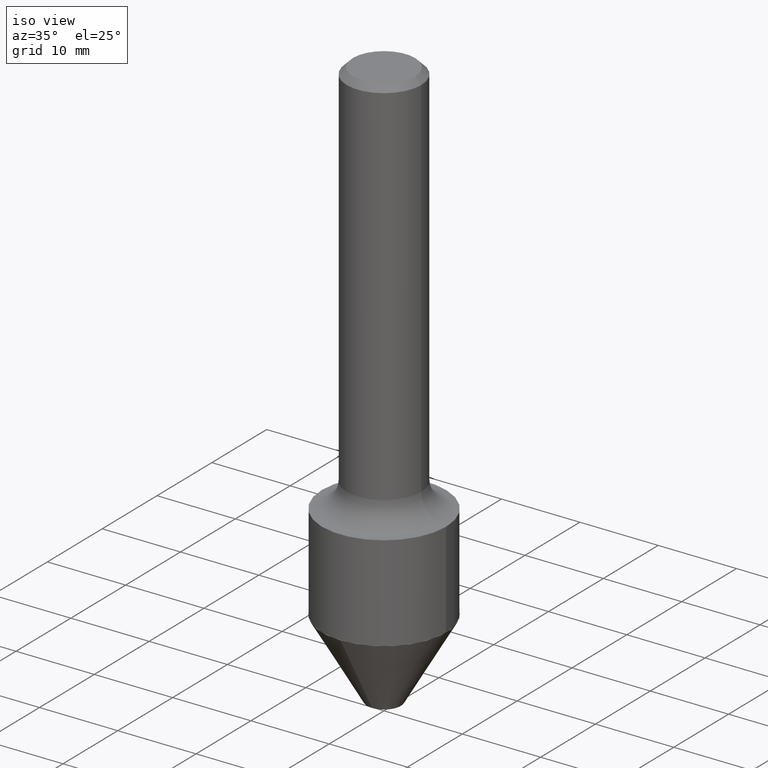
[diagram: clean part render]
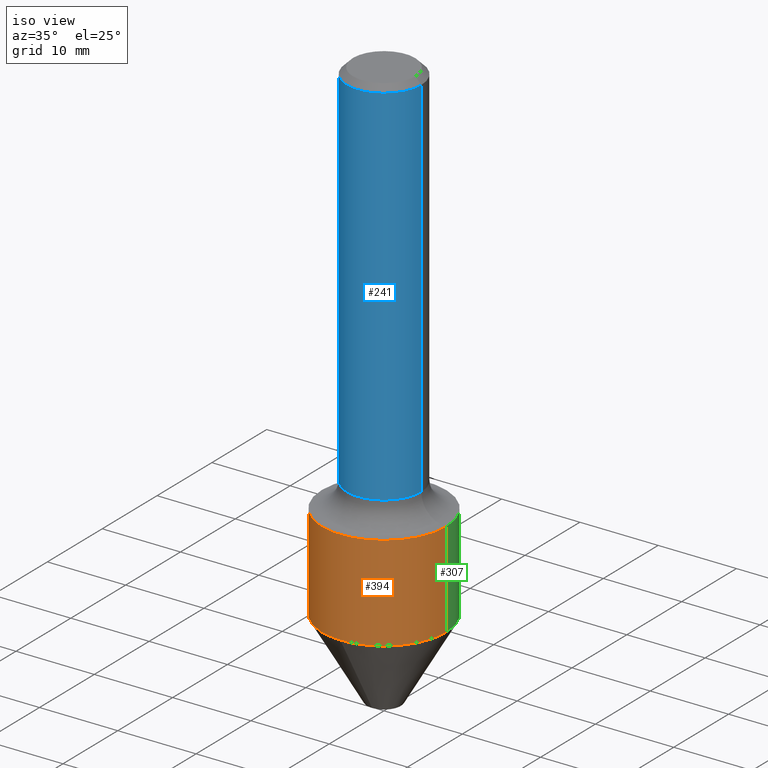
[diagram: same view with three faces highlighted in distinct colors, each labeled with its STEP entity id]
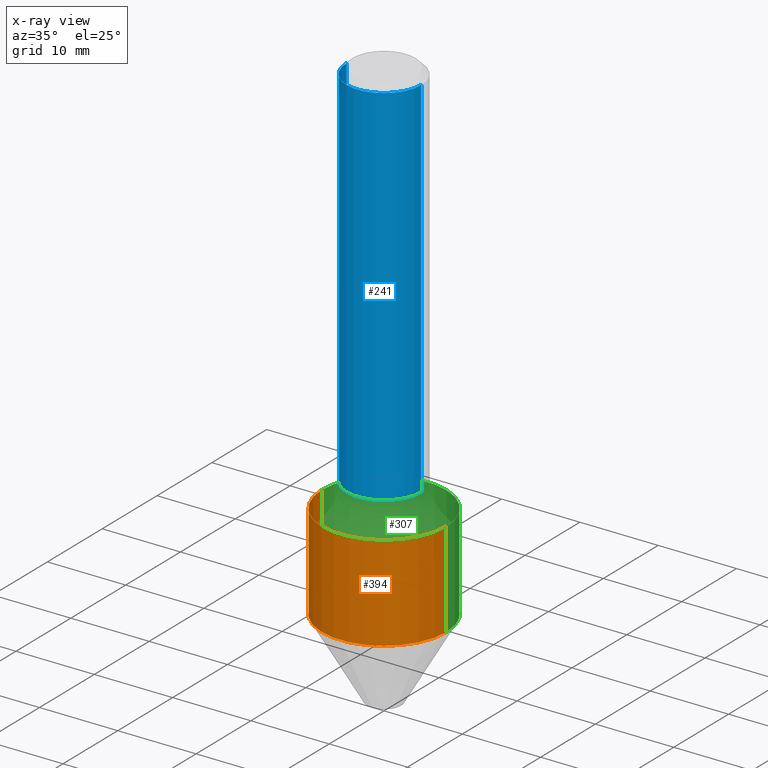
[diagram: x-ray of the same camera — body ghosted, the three highlighted faces saturated]
A machine part, iso view with three faces highlighted in distinct colors.
The next image is the same camera in x-ray (body ghosted, the three faces saturated) — at least one of them is partly hidden behind the body in this view.
Their STEP definitions:

[orange] entity #394 — the highlighted cylindrical surface (partial cylindrical patch) has radius 7.9375 mm, axis along (-0, 0, 1).
#5 = CIRCLE ( 'NONE', #480, 0.3125000000000000000 ) ;
#32 = VERTEX_POINT ( 'NONE', #74 ) ;
#40 = DIRECTION ( 'NONE',  ( 1.000000000000000000, -6.982962677686266711E-15, 4.876176775795936353E-29 ) ) ;
#54 = ORIENTED_EDGE ( 'NONE', *, *, #331, .F. ) ;
#60 = AXIS2_PLACEMENT_3D ( 'NONE', #100, #440, #151 ) ;
#66 = VERTEX_POINT ( 'NONE', #76 ) ;
#74 = CARTESIAN_POINT ( 'NONE',  ( 0.3125000000000000000, -1.085836186230025416E-14, -2.484958441278116492 ) ) ;
#76 = CARTESIAN_POINT ( 'NONE',  ( -0.3125000000000000000, -4.779974035130193909E-15, -2.004999999999999893 ) ) ;
#100 = CARTESIAN_POINT ( 'NONE',  ( 4.903164956401198966E-29, -7.000420084380507779E-15, -2.004999999999999893 ) ) ;
#131 = VECTOR ( 'NONE', #150, 39.37007874015748143 ) ;
#135 = DIRECTION ( 'NONE',  ( -2.445468806185136597E-29, 3.491481338843145583E-15, 1.000000000000000000 ) ) ;
#149 = ORIENTED_EDGE ( 'NONE', *, *, #313, .T. ) ;
#150 = DIRECTION ( 'NONE',  ( -2.445468806185136877E-29, 3.491481338843145188E-15, 1.000000000000000000 ) ) ;
#151 = DIRECTION ( 'NONE',  ( 1.000000000000000000, -6.982962677686269077E-15, 0.000000000000000000 ) ) ;
#176 = CARTESIAN_POINT ( 'NONE',  ( 0.000000000000000000, 0.000000000000000000, 0.000000000000000000 ) ) ;
#178 = CARTESIAN_POINT ( 'NONE',  ( -0.3125000000000000000, 2.220446049250313081E-15, -1.537167215704658232E-29 ) ) ;
#180 = ORIENTED_EDGE ( 'NONE', *, *, #448, .T. ) ;
#188 = VERTEX_POINT ( 'NONE', #293 ) ;
#206 = LINE ( 'NONE', #178, #224 ) ;
#218 = ORIENTED_EDGE ( 'NONE', *, *, #494, .F. ) ;
#224 = VECTOR ( 'NONE', #390, 39.37007874015748143 ) ;
#232 = AXIS2_PLACEMENT_3D ( 'NONE', #176, #236, #40 ) ;
#236 = DIRECTION ( 'NONE',  ( -2.445468806185136597E-29, 3.491481338843145583E-15, 1.000000000000000000 ) ) ;
#262 = CYLINDRICAL_SURFACE ( 'NONE', #232, 0.3125000000000000000 ) ;
#291 = FACE_OUTER_BOUND ( 'NONE', #325, .T. ) ;
#293 = CARTESIAN_POINT ( 'NONE',  ( -0.3125000000000000000, -5.617857005701588322E-15, -2.484958441278116492 ) ) ;
#302 = DIRECTION ( 'NONE',  ( 1.000000000000000000, -6.982962677686269077E-15, 0.000000000000000000 ) ) ;
#313 = EDGE_CURVE ( 'NONE', #188, #32, #5, .T. ) ;
#325 = EDGE_LOOP ( 'NONE', ( #218, #149, #180, #54 ) ) ;
#331 = EDGE_CURVE ( 'NONE', #66, #427, #479, .T. ) ;
#354 = LINE ( 'NONE', #472, #131 ) ;
#390 = DIRECTION ( 'NONE',  ( -2.445468806185136877E-29, 3.491481338843145188E-15, 1.000000000000000000 ) ) ;
#394 = ADVANCED_FACE ( 'NONE', ( #291 ), #262, .T. ) ;
#427 = VERTEX_POINT ( 'NONE', #439 ) ;
#439 = CARTESIAN_POINT ( 'NONE',  ( 0.3125000000000000000, -9.182595921157466915E-15, -2.004999999999999893 ) ) ;
#440 = DIRECTION ( 'NONE',  ( -2.445468806185136597E-29, 3.491481338843145583E-15, 1.000000000000000000 ) ) ;
#448 = EDGE_CURVE ( 'NONE', #32, #427, #354, .T. ) ;
#472 = CARTESIAN_POINT ( 'NONE',  ( 0.3125000000000000000, -2.182175836776958347E-15, 1.523805242436230075E-29 ) ) ;
#479 = CIRCLE ( 'NONE', #60, 0.3125000000000000000 ) ;
#480 = AXIS2_PLACEMENT_3D ( 'NONE', #506, #135, #302 ) ;
#494 = EDGE_CURVE ( 'NONE', #188, #66, #206, .T. ) ;
#506 = CARTESIAN_POINT ( 'NONE',  ( 6.076888352812073926E-29, -8.676186025523294239E-15, -2.484958441278116492 ) ) ;

[blue] entity #241 — the highlighted cylindrical surface (partial cylindrical patch) has radius 4.7625 mm, axis along (-0, 0, 1).
#2 = DIRECTION ( 'NONE',  ( -2.445468806185136877E-29, 3.491481338843145188E-15, 1.000000000000000000 ) ) ;
#14 = DIRECTION ( 'NONE',  ( 1.000000000000000000, -6.982962677686269077E-15, 0.000000000000000000 ) ) ;
#41 = LINE ( 'NONE', #357, #441 ) ;
#46 = EDGE_CURVE ( 'NONE', #303, #507, #41, .T. ) ;
#63 = ORIENTED_EDGE ( 'NONE', *, *, #185, .F. ) ;
#80 = CIRCLE ( 'NONE', #323, 0.1875000000000000278 ) ;
#114 = EDGE_CURVE ( 'NONE', #424, #303, #199, .T. ) ;
#140 = CARTESIAN_POINT ( 'NONE',  ( -0.1875000000000002498, -5.005845661302559902E-15, -1.880000000000000338 ) ) ;
#161 = CARTESIAN_POINT ( 'NONE',  ( -0.1875000000000001110, 1.332267629550188637E-15, -9.223003294227953596E-30 ) ) ;
#179 = CARTESIAN_POINT ( 'NONE',  ( -0.1875000000000000278, 1.200371284294268058E-15, -0.03120000000000022755 ) ) ;
#185 = EDGE_CURVE ( 'NONE', #424, #309, #384, .T. ) ;
#192 = EDGE_CURVE ( 'NONE', #309, #507, #80, .T. ) ;
#199 = CIRCLE ( 'NONE', #420, 0.1875000000000002498 ) ;
#241 = ADVANCED_FACE ( 'NONE', ( #510 ), #308, .T. ) ;
#270 = CARTESIAN_POINT ( 'NONE',  ( 0.000000000000000000, 0.000000000000000000, 0.000000000000000000 ) ) ;
#303 = VERTEX_POINT ( 'NONE', #416 ) ;
#308 = CYLINDRICAL_SURFACE ( 'NONE', #436, 0.1875000000000001110 ) ;
#309 = VERTEX_POINT ( 'NONE', #179 ) ;
#312 = ORIENTED_EDGE ( 'NONE', *, *, #114, .T. ) ;
#323 = AXIS2_PLACEMENT_3D ( 'NONE', #457, #334, #419 ) ;
#328 = DIRECTION ( 'NONE',  ( -2.445468806185136877E-29, 3.491481338843145188E-15, 1.000000000000000000 ) ) ;
#334 = DIRECTION ( 'NONE',  ( -2.445468806185136597E-29, 3.491481338843145583E-15, 1.000000000000000000 ) ) ;
#347 = ORIENTED_EDGE ( 'NONE', *, *, #192, .F. ) ;
#357 = CARTESIAN_POINT ( 'NONE',  ( 0.1875000000000001110, -1.309305502066175797E-15, 9.142831454617385217E-30 ) ) ;
#384 = LINE ( 'NONE', #161, #478 ) ;
#391 = DIRECTION ( 'NONE',  ( 1.000000000000000000, -6.982962677686266711E-15, 4.876176775795935793E-29 ) ) ;
#409 = CARTESIAN_POINT ( 'NONE',  ( 4.597481355628058013E-29, -6.563984917025115320E-15, -1.880000000000000338 ) ) ;
#416 = CARTESIAN_POINT ( 'NONE',  ( 0.1875000000000002498, -7.873290419091291906E-15, -1.880000000000000338 ) ) ;
#419 = DIRECTION ( 'NONE',  ( 1.000000000000000000, -6.982962677686265922E-15, 0.000000000000000000 ) ) ;
#420 = AXIS2_PLACEMENT_3D ( 'NONE', #409, #495, #14 ) ;
#423 = DIRECTION ( 'NONE',  ( -2.445468806185136597E-29, 3.491481338843145583E-15, 1.000000000000000000 ) ) ;
#424 = VERTEX_POINT ( 'NONE', #140 ) ;
#436 = AXIS2_PLACEMENT_3D ( 'NONE', #270, #423, #391 ) ;
#441 = VECTOR ( 'NONE', #2, 39.37007874015748143 ) ;
#457 = CARTESIAN_POINT ( 'NONE',  ( 7.629862675297681829E-31, -1.089342177719069380E-16, -0.03120000000000022755 ) ) ;
#475 = ORIENTED_EDGE ( 'NONE', *, *, #46, .T. ) ;
#477 = EDGE_LOOP ( 'NONE', ( #63, #312, #475, #347 ) ) ;
#478 = VECTOR ( 'NONE', #328, 39.37007874015748143 ) ;
#485 = CARTESIAN_POINT ( 'NONE',  ( 0.1875000000000000278, -1.395277592354069315E-15, -0.03120000000000022755 ) ) ;
#495 = DIRECTION ( 'NONE',  ( -2.445468806185136597E-29, 3.491481338843145583E-15, 1.000000000000000000 ) ) ;
#507 = VERTEX_POINT ( 'NONE', #485 ) ;
#510 = FACE_OUTER_BOUND ( 'NONE', #477, .T. ) ;

[green] entity #307 — the highlighted cylindrical surface (partial cylindrical patch) has radius 7.9375 mm, axis along (-0, 0, 1).
#19 = DIRECTION ( 'NONE',  ( -2.445468806185136597E-29, 3.491481338843145583E-15, 1.000000000000000000 ) ) ;
#27 = FACE_OUTER_BOUND ( 'NONE', #191, .T. ) ;
#32 = VERTEX_POINT ( 'NONE', #74 ) ;
#58 = CYLINDRICAL_SURFACE ( 'NONE', #110, 0.3125000000000000000 ) ;
#66 = VERTEX_POINT ( 'NONE', #76 ) ;
#74 = CARTESIAN_POINT ( 'NONE',  ( 0.3125000000000000000, -1.085836186230025416E-14, -2.484958441278116492 ) ) ;
#76 = CARTESIAN_POINT ( 'NONE',  ( -0.3125000000000000000, -4.779974035130193909E-15, -2.004999999999999893 ) ) ;
#88 = CARTESIAN_POINT ( 'NONE',  ( 4.903164956401198966E-29, -7.000420084380507779E-15, -2.004999999999999893 ) ) ;
#91 = AXIS2_PLACEMENT_3D ( 'NONE', #198, #283, #205 ) ;
#102 = EDGE_CURVE ( 'NONE', #427, #66, #242, .T. ) ;
#110 = AXIS2_PLACEMENT_3D ( 'NONE', #377, #19, #170 ) ;
#120 = AXIS2_PLACEMENT_3D ( 'NONE', #88, #256, #210 ) ;
#131 = VECTOR ( 'NONE', #150, 39.37007874015748143 ) ;
#138 = ORIENTED_EDGE ( 'NONE', *, *, #102, .F. ) ;
#150 = DIRECTION ( 'NONE',  ( -2.445468806185136877E-29, 3.491481338843145188E-15, 1.000000000000000000 ) ) ;
#170 = DIRECTION ( 'NONE',  ( 1.000000000000000000, -6.982962677686266711E-15, 4.876176775795936353E-29 ) ) ;
#178 = CARTESIAN_POINT ( 'NONE',  ( -0.3125000000000000000, 2.220446049250313081E-15, -1.537167215704658232E-29 ) ) ;
#188 = VERTEX_POINT ( 'NONE', #293 ) ;
#191 = EDGE_LOOP ( 'NONE', ( #396, #287, #138, #511 ) ) ;
#198 = CARTESIAN_POINT ( 'NONE',  ( 6.076888352812073926E-29, -8.676186025523294239E-15, -2.484958441278116492 ) ) ;
#205 = DIRECTION ( 'NONE',  ( 1.000000000000000000, -6.982962677686269077E-15, 0.000000000000000000 ) ) ;
#206 = LINE ( 'NONE', #178, #224 ) ;
#210 = DIRECTION ( 'NONE',  ( 1.000000000000000000, -6.982962677686269077E-15, 0.000000000000000000 ) ) ;
#224 = VECTOR ( 'NONE', #390, 39.37007874015748143 ) ;
#242 = CIRCLE ( 'NONE', #120, 0.3125000000000000000 ) ;
#256 = DIRECTION ( 'NONE',  ( -2.445468806185136597E-29, 3.491481338843145583E-15, 1.000000000000000000 ) ) ;
#283 = DIRECTION ( 'NONE',  ( -2.445468806185136597E-29, 3.491481338843145583E-15, 1.000000000000000000 ) ) ;
#287 = ORIENTED_EDGE ( 'NONE', *, *, #494, .T. ) ;
#293 = CARTESIAN_POINT ( 'NONE',  ( -0.3125000000000000000, -5.617857005701588322E-15, -2.484958441278116492 ) ) ;
#307 = ADVANCED_FACE ( 'NONE', ( #27 ), #58, .T. ) ;
#315 = CIRCLE ( 'NONE', #91, 0.3125000000000000000 ) ;
#354 = LINE ( 'NONE', #472, #131 ) ;
#358 = EDGE_CURVE ( 'NONE', #32, #188, #315, .T. ) ;
#377 = CARTESIAN_POINT ( 'NONE',  ( 0.000000000000000000, 0.000000000000000000, 0.000000000000000000 ) ) ;
#390 = DIRECTION ( 'NONE',  ( -2.445468806185136877E-29, 3.491481338843145188E-15, 1.000000000000000000 ) ) ;
#396 = ORIENTED_EDGE ( 'NONE', *, *, #358, .T. ) ;
#427 = VERTEX_POINT ( 'NONE', #439 ) ;
#439 = CARTESIAN_POINT ( 'NONE',  ( 0.3125000000000000000, -9.182595921157466915E-15, -2.004999999999999893 ) ) ;
#448 = EDGE_CURVE ( 'NONE', #32, #427, #354, .T. ) ;
#472 = CARTESIAN_POINT ( 'NONE',  ( 0.3125000000000000000, -2.182175836776958347E-15, 1.523805242436230075E-29 ) ) ;
#494 = EDGE_CURVE ( 'NONE', #188, #66, #206, .T. ) ;
#511 = ORIENTED_EDGE ( 'NONE', *, *, #448, .F. ) ;